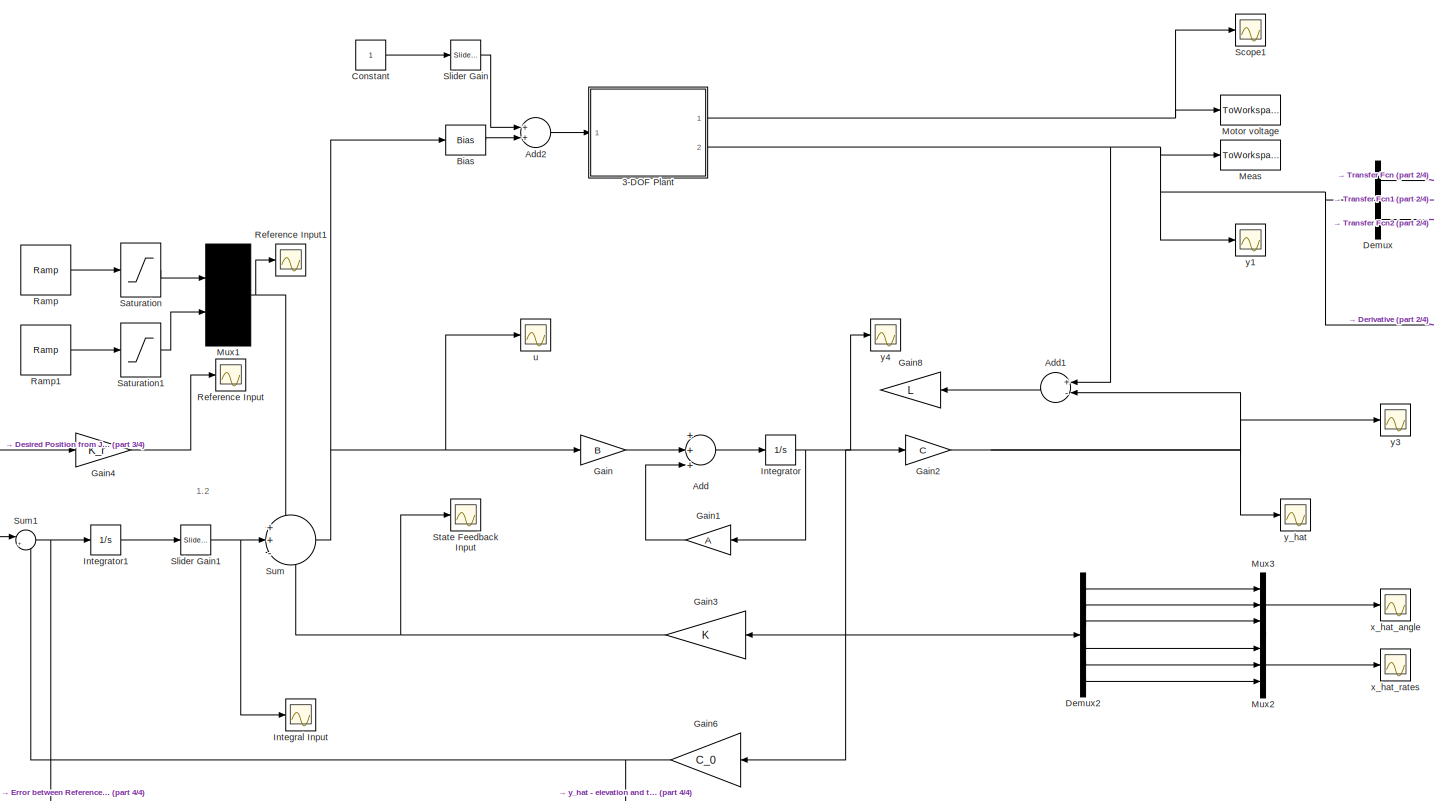
[diagram: root canvas - part 1/4, center side, full height]
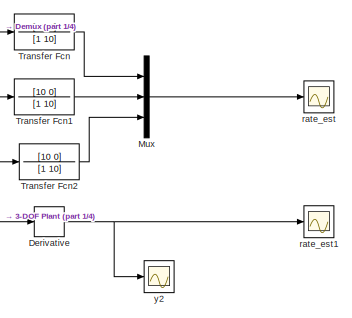
[diagram: root canvas - part 2/4, top right region]
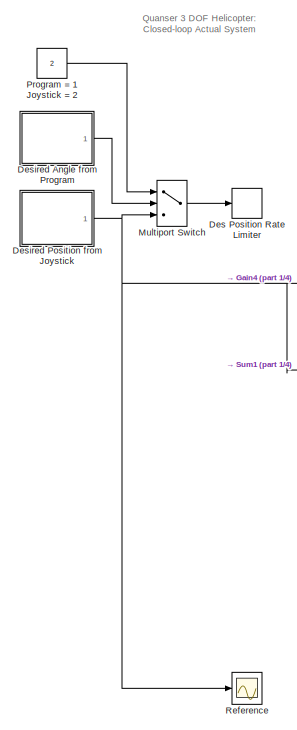
[diagram: root canvas - part 3/4, left side, full height]
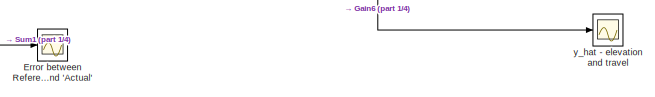
[diagram: root canvas - part 4/4, bottom center region]
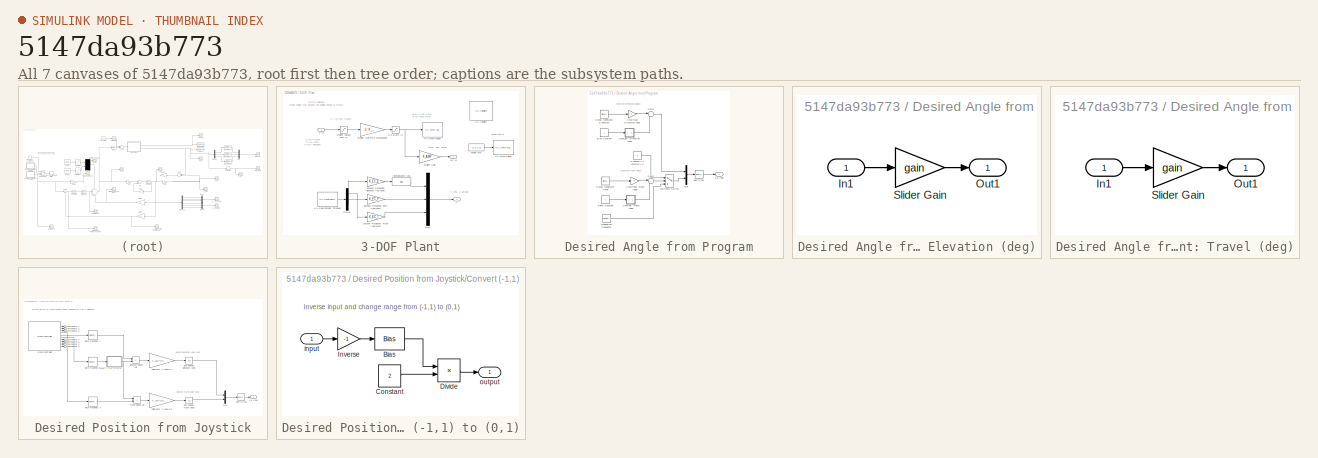
[diagram: thumbnail index - all 7 canvases of the model, root first then tree order]
MODEL slx_5147da93b773
KIND model
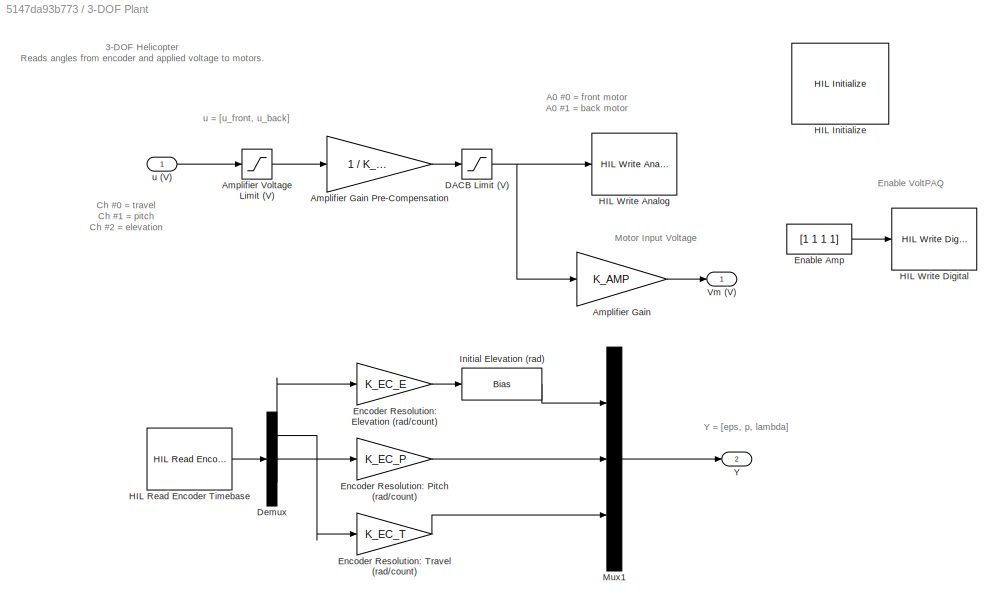
BLOCK [SubSystem] 3-DOF Plant
  FunctionWithSeparateData = off
  MaskHideContents = off
  MinAlgLoopOccurrences = off
  Opaque = off
  Ports = [1, 2]
  PropExecContextOutsideSubsystem = off
  RTWSystemCode = Auto
  RequestExecContextInheritance = off
BLOCK [Gain] 3-DOF Plant/Amplifier Gain
  Gain = K_AMP
  Multiplication = Matrix(K*u)
BLOCK [Gain] 3-DOF Plant/Amplifier Gain Pre-Compensation
  Gain = 1 / K_AMP
  Multiplication = Matrix(K*u)
BLOCK [Saturate] 3-DOF Plant/Amplifier Voltage Limit (V)
  InputPortMap = u0
  LowerLimit = -VMAX_AMP
  Ports = [1, 1]
  UpperLimit = VMAX_AMP
BLOCK [Saturate] 3-DOF Plant/DACB Limit (V)
  InputPortMap = u0
  LowerLimit = -VMAX_DAC
  Ports = [1, 1]
  UpperLimit = VMAX_DAC
BLOCK [Demux] 3-DOF Plant/Demux
  DisplayOption = bar
  Outputs = 3
  Ports = [1, 3]
BLOCK [Constant] 3-DOF Plant/Enable Amp
  Value = [1 1 1 1]
BLOCK [Gain] 3-DOF Plant/Encoder Resolution: Elevation (rad//count)
  Gain = K_EC_E
  OutDataTypeStr = Inherit: Inherit via internal rule
  ParamDataTypeStr = Inherit: Inherit via internal rule
  SaturateOnIntegerOverflow = off
BLOCK [Gain] 3-DOF Plant/Encoder Resolution: Pitch (rad//count)
  Gain = K_EC_P
  OutDataTypeStr = Inherit: Inherit via internal rule
  ParamDataTypeStr = Inherit: Inherit via internal rule
  SaturateOnIntegerOverflow = off
BLOCK [Gain] 3-DOF Plant/Encoder Resolution: Travel (rad//count)
  Gain = K_EC_T
  OutDataTypeStr = Inherit: Inherit via internal rule
  ParamDataTypeStr = Inherit: Inherit via internal rule
  SaturateOnIntegerOverflow = off
BLOCK [Reference] 3-DOF Plant/HIL Initialize  REF=quarc_library/Data Acquisition/Generic/Configuration/HIL Initialize
  AttributesFormatString = %<object_name> (%<board_type>-%<board_number>)
  Ports = []
  SourceBlock = quarc_library/Data Acquisition/Generic/Configuration/HIL Initialize
  SourceType = HIL Initialize
  UserDataPersistent = on
  active = on
  analog_input_channels = [0:7]
  analog_input_maximums = 10
  analog_input_minimums = -10
  analog_output_channels = [0:7]
  analog_output_maximums = 10
  analog_output_minimums = -10
  board_number = 0
  board_options = update_rate=normal
  board_type = q8_usb
  clock_modes = []
  digital_input_channels = [4:7]
  digital_output_channels = [0:3]
  digital_output_configuration = []
  encoder_channels = [0:7]
  encoder_filter_frequency = []
  exclusive = off
  final_analog_outputs = [0]
  final_digital_outputs = [0]
  final_other_outputs = []
  final_pwm_outputs = [0]
  hardware_clocks = [0:2]
  initial_analog_outputs = [0]
  initial_clock_frequencies = []
  initial_digital_outputs = [0]
  initial_encoder_counts = [0]
  initial_other_outputs = []
  initial_pwm_outputs = [0]
  object_name = HIL-1
  other_output_channels = []
  pwm_alignment = [0]
  pwm_channels = [0:7]
  pwm_configuration = [0]
  pwm_frequency = 99.532799999999995e6/4095
  pwm_leading_deadband = [0]
  pwm_modes = 0
  pwm_polarity = [1]
  pwm_trailing_deadband = [0]
  quadrature = [4]
  set_analog_input_params_at_start = on
  set_analog_input_params_at_switch_in = off
  set_analog_output_params_at_start = on
  set_analog_output_params_at_switch_in = off
  set_analog_outputs_at_start = on
  set_analog_outputs_at_switch_in = off
  set_analog_outputs_at_switch_out = off
  set_analog_outputs_at_terminate = on
  set_analog_outputs_on_watchdog = off
  set_clock_frequencies_at_start = off
  set_clock_frequencies_at_switch_in = off
  set_clock_params_at_start = off
  set_clock_params_at_switch_in = off
  set_digital_output_params_at_start = off
  set_digital_output_params_at_switch_in = off
  set_digital_outputs_at_start = on
  set_digital_outputs_at_switch_in = off
  set_digital_outputs_at_switch_out = off
  set_digital_outputs_at_terminate = on
  set_digital_outputs_on_watchdog = off
  set_encoder_counts_at_start = on
  set_encoder_counts_at_switch_in = off
  set_encoder_params_at_start = on
  set_encoder_params_at_switch_in = off
  set_other_outputs_at_start = off
  set_other_outputs_at_switch_in = off
  set_other_outputs_at_switch_out = off
  set_other_outputs_at_terminate = off
  set_other_outputs_on_watchdog = off
  set_pwm_outputs_at_start = on
  set_pwm_outputs_at_switch_in = off
  set_pwm_outputs_at_switch_out = off
  set_pwm_outputs_at_terminate = on
  set_pwm_outputs_on_watchdog = off
  set_pwm_params_at_start = on
  set_pwm_params_at_switch_in = off
  watchdog_analog_outputs = 0
  watchdog_digital_outputs = [0]
  watchdog_other_outputs = []
  watchdog_pwm_outputs = [0]
BLOCK [Reference] 3-DOF Plant/HIL Read Encoder Timebase  REF=quarc_library/Data Acquisition/Generic/Timebases/HIL Read Encoder
Timebase
  AttributesFormatString = (%<object_name>)
  Ports = [0, 1]
  SourceBlock = quarc_library/Data Acquisition/Generic/Timebases/HIL Read Encoder\nTimebase
  SourceType = HIL Read Encoder Timebase
  UserDataPersistent = on
  active = on
  channels = [0,1,2]
  clock = 0
  data_type = double
  data_type_mode = Inherit via back propagation
  object_name = HIL-1
  samples_in_buffer = max(ceil(1/qc_get_step_size), 1)
  vector_output = on
BLOCK [Reference] 3-DOF Plant/HIL Write Analog  REF=quarc_library/Data Acquisition/Generic/Immediate I//O/HIL Write Analog
  AttributesFormatString = (%<object_name>)
  Ports = [1]
  SourceBlock = quarc_library/Data Acquisition/Generic/Immediate I//O/HIL Write Analog
  SourceType = HIL Write Analog
  UserDataPersistent = on
  active = off
  channels = [0,1]
  object_name = HIL-1
  sample_time = -1
  vector_input = on
BLOCK [Reference] 3-DOF Plant/HIL Write Digital  REF=quarc_library/Data Acquisition/Generic/Immediate I//O/HIL Write Digital
  AttributesFormatString = (%<object_name>)
  Ports = [1]
  SourceBlock = quarc_library/Data Acquisition/Generic/Immediate I//O/HIL Write Digital
  SourceType = HIL Write Digital
  UserDataPersistent = on
  active = off
  channels = [0:3]
  object_name = HIL-1
  sample_time = -1
  vector_input = on
BLOCK [Bias] 3-DOF Plant/Initial Elevation (rad)
  Bias = elev_0
  SaturateOnIntegerOverflow = off
BLOCK [Mux] 3-DOF Plant/Mux1
  DisplayOption = bar
  Inputs = 3
  Ports = [3, 1]
BLOCK [Outport] 3-DOF Plant/Vm (V)
  IconDisplay = Port number
BLOCK [Outport] 3-DOF Plant/Y
  IconDisplay = Port number
  Port = 2
BLOCK [Inport] 3-DOF Plant/u (V)
  IconDisplay = Port number
BLOCK [Sum] Add
  InputSameDT = off
  Inputs = +++
  OutDataTypeStr = Inherit: Inherit via internal rule
  Ports = [3, 1]
  SaturateOnIntegerOverflow = off
BLOCK [Sum] Add1
  InputSameDT = off
  Inputs = +-
  OutDataTypeStr = Inherit: Inherit via internal rule
  Ports = [2, 1]
  SaturateOnIntegerOverflow = off
BLOCK [Sum] Add2
  InputSameDT = off
  OutDataTypeStr = Inherit: Inherit via internal rule
  Ports = [2, 1]
  SaturateOnIntegerOverflow = off
BLOCK [Bias] Bias
  Bias = Vo
  SaturateOnIntegerOverflow = off
BLOCK [Constant] Constant
BLOCK [Demux] Demux
  DisplayOption = bar
  Outputs = 3
  Ports = [1, 3]
BLOCK [Demux] Demux2
  DisplayOption = bar
  Outputs = 6
  Ports = [1, 6]
BLOCK [Derivative] Derivative
BLOCK [RateLimiter] Des Position Rate Limiter
  FallingSlewLimit = -CMD_RATE_LIMIT
  RisingSlewLimit = CMD_RATE_LIMIT
  SampleTimeMode = inherited
BLOCK [SubSystem] Desired Angle from Program
  FunctionWithSeparateData = off
  MaskHideContents = off
  MinAlgLoopOccurrences = off
  Opaque = off
  Ports = [0, 1]
  PropExecContextOutsideSubsystem = off
  RTWSystemCode = Auto
  RequestExecContextInheritance = off
BLOCK [Gain] Desired Angle from Program/Amplitude: Elevation (deg)
  Gain = 0
  OutDataTypeStr = Inherit: Inherit via internal rule
  ParamDataTypeStr = Inherit: Inherit via internal rule
  SaturateOnIntegerOverflow = off
BLOCK [Gain] Desired Angle from Program/Amplitude: Travel (deg)
  Gain = 0
  OutDataTypeStr = Inherit: Inherit via internal rule
  ParamDataTypeStr = Inherit: Inherit via internal rule
  SaturateOnIntegerOverflow = off
BLOCK [SubSystem] Desired Angle from Program/Constant: Elevation (deg)
  CloseFcn = slideg Close
  CopyFcn = slideg Copy
  DeleteFcn = slideg DeleteBlock
  FunctionWithSeparateData = off
  LoadFcn = slideg Load
  MaskCallbackString = ||
  MaskCapabilities = slmaskedcaps(gcbh)
  MaskDisplay = disp(gain)
  MaskEnableString = on,on,on
  MaskHideContents = off
  MaskIconFrame = on
  MaskIconOpaque = on
  MaskIconRotate = none
  MaskIconUnits = autoscale
  MaskPortRotate = default
  MaskPromptString = Low|Gain|High
  MaskStyleString = edit,edit,edit
  MaskToolTipString = on,on,on
  MaskTunableValueString = on,on,on
  MaskType = Slider Gain
  MaskValueString = -27.5|-27.5|30
  MaskVariables = low=@1;gain=@2;high=@3;
  MaskVisibilityString = on,on,on
  MinAlgLoopOccurrences = off
  NameChangeFcn = slideg NameChange
  Opaque = off
  OpenFcn = slideg Open
  ParentCloseFcn = slideg ParentClose
  Ports = [1, 1]
  PropExecContextOutsideSubsystem = off
  RTWSystemCode = Auto
  RequestExecContextInheritance = off
  StartFcn = slideg StartFcn
  StopFcn = slideg StopFcn
BLOCK [Inport] Desired Angle from Program/Constant: Elevation (deg)/In1
  IconDisplay = Port number
BLOCK [Outport] Desired Angle from Program/Constant: Elevation (deg)/Out1
  IconDisplay = Port number
BLOCK [Gain] Desired Angle from Program/Constant: Elevation (deg)/Slider Gain
  Gain = gain
BLOCK [SubSystem] Desired Angle from Program/Constant: Travel (deg)
  CloseFcn = slideg Close
  CopyFcn = slideg Copy
  DeleteFcn = slideg DeleteBlock
  FunctionWithSeparateData = off
  LoadFcn = slideg Load
  MaskCallbackString = ||
  MaskCapabilities = slmaskedcaps(gcbh)
  MaskDisplay = disp(gain)
  MaskEnableString = on,on,on
  MaskHideContents = off
  MaskIconFrame = on
  MaskIconOpaque = on
  MaskIconRotate = none
  MaskIconUnits = autoscale
  MaskPortRotate = default
  MaskPromptString = Low|Gain|High
  MaskStyleString = edit,edit,edit
  MaskToolTipString = on,on,on
  MaskTunableValueString = on,on,on
  MaskType = Slider Gain
  MaskValueString = -90|0|90
  MaskVariables = low=@1;gain=@2;high=@3;
  MaskVisibilityString = on,on,on
  MinAlgLoopOccurrences = off
  NameChangeFcn = slideg NameChange
  Opaque = off
  OpenFcn = slideg Open
  ParentCloseFcn = slideg ParentClose
  Ports = [1, 1]
  PropExecContextOutsideSubsystem = off
  RTWSystemCode = Auto
  RequestExecContextInheritance = off
  StartFcn = slideg StartFcn
  StopFcn = slideg StopFcn
BLOCK [Inport] Desired Angle from Program/Constant: Travel (deg)/In1
  IconDisplay = Port number
BLOCK [Outport] Desired Angle from Program/Constant: Travel (deg)/Out1
  IconDisplay = Port number
BLOCK [Gain] Desired Angle from Program/Constant: Travel (deg)/Slider Gain
  Gain = gain
BLOCK [Constant] Desired Angle from Program/Elev Constant
BLOCK [MultiPortSwitch] Desired Angle from Program/Multiport Switch
  InputSameDT = off
  Inputs = 2
  Ports = [3, 1]
  SaturateOnIntegerOverflow = off
  zeroidx = off
BLOCK [Mux] Desired Angle from Program/Mux
  DisplayOption = bar
  Inputs = 2
  Ports = [2, 1]
BLOCK [Constant] Desired Angle from Program/Program = 1 Joystick = 2
  Value = 2
BLOCK [Reference] Desired Angle from Program/Repeating Sequence  REF=simulink/Sources/Repeating
Sequence
  Ports = [0, 1]
  SourceBlock = simulink/Sources/Repeating\nSequence
  SourceType = Repeating table
  rep_seq_t = [0  15 16  30  45  46 60 ]
  rep_seq_y = [0 0 30 30  30 0 0 ]
BLOCK [SignalGenerator] Desired Angle from Program/Signal Generator: Elevation
  Frequency = 0.04
  Ports = [0, 1]
  WaveForm = square
BLOCK [SignalGenerator] Desired Angle from Program/Signal Generator: Travel
  Frequency = 0.03
  Ports = [0, 1]
  WaveForm = square
BLOCK [Sum] Desired Angle from Program/Sum1
  IconShape = round
  InputSameDT = off
  Inputs = |++
  OutDataTypeStr = Inherit: Inherit via internal rule
  Ports = [2, 1]
  SaturateOnIntegerOverflow = off
BLOCK [Sum] Desired Angle from Program/Sum2
  IconShape = round
  InputSameDT = off
  Inputs = |++
  OutDataTypeStr = Inherit: Inherit via internal rule
  Ports = [2, 1]
  SaturateOnIntegerOverflow = off
BLOCK [Constant] Desired Angle from Program/Travel Constant
BLOCK [Reference] Desired Angle from Program/deg to rad  REF=simulink_extras/Transformations/Degrees to
Radians
  Ports = [1, 1]
  SourceBlock = simulink_extras/Transformations/Degrees to\nRadians
  SourceType = DegreesToRadians
BLOCK [Outport] Desired Angle from Program/x_d (rad)
  IconDisplay = Port number
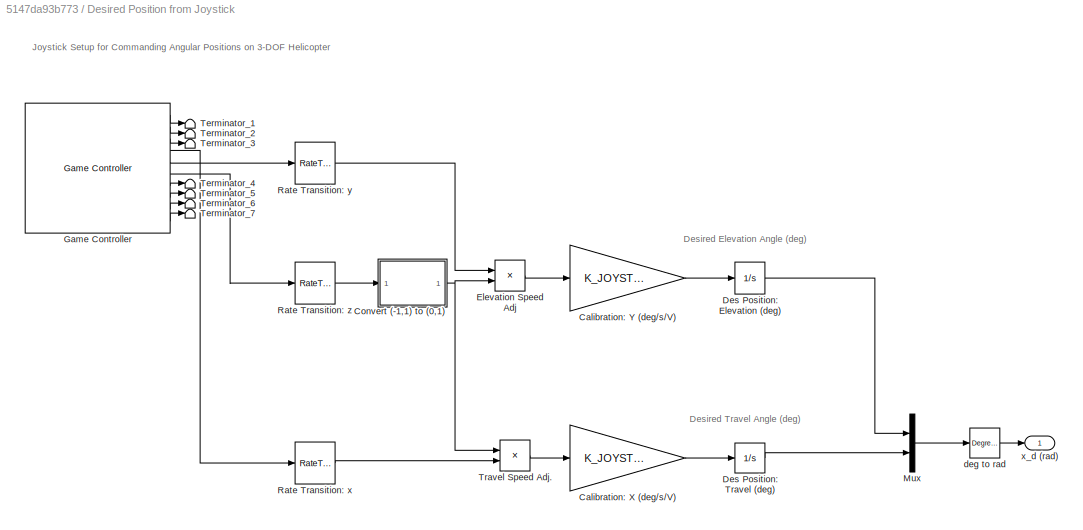
BLOCK [SubSystem] Desired Position from Joystick
  FunctionWithSeparateData = off
  MaskHideContents = off
  MinAlgLoopOccurrences = off
  Opaque = off
  Ports = [0, 1]
  PropExecContextOutsideSubsystem = off
  RTWSystemCode = Auto
  RequestExecContextInheritance = off
BLOCK [Gain] Desired Position from Joystick/Calibration: X (deg//s//V)
  Gain = K_JOYSTICK_X
  OutDataTypeStr = Inherit: Inherit via internal rule
  ParamDataTypeStr = Inherit: Inherit via internal rule
  SaturateOnIntegerOverflow = off
BLOCK [Gain] Desired Position from Joystick/Calibration: Y (deg//s//V)
  Gain = K_JOYSTICK_Y
  OutDataTypeStr = Inherit: Inherit via internal rule
  ParamDataTypeStr = Inherit: Inherit via internal rule
  SaturateOnIntegerOverflow = off
BLOCK [SubSystem] Desired Position from Joystick/Convert (-1,1) to (0,1)
  FunctionWithSeparateData = off
  MaskHideContents = off
  MinAlgLoopOccurrences = off
  Opaque = off
  Ports = [1, 1]
  PropExecContextOutsideSubsystem = off
  RTWSystemCode = Auto
  RequestExecContextInheritance = off
BLOCK [Bias] Desired Position from Joystick/Convert (-1,1) to (0,1)/Bias
  Bias = 1
  SaturateOnIntegerOverflow = off
BLOCK [Constant] Desired Position from Joystick/Convert (-1,1) to (0,1)/Constant
  Value = 2
BLOCK [Product] Desired Position from Joystick/Convert (-1,1) to (0,1)/Divide
  InputSameDT = off
  Inputs = */
  OutDataTypeStr = Inherit: Inherit via internal rule
  Ports = [2, 1]
  RndMeth = Floor
  SaturateOnIntegerOverflow = off
BLOCK [Gain] Desired Position from Joystick/Convert (-1,1) to (0,1)/Inverse
  Gain = -1
  OutDataTypeStr = Inherit: Inherit via internal rule
  ParamDataTypeStr = Inherit: Inherit via internal rule
  SaturateOnIntegerOverflow = off
BLOCK [Inport] Desired Position from Joystick/Convert (-1,1) to (0,1)/input
  IconDisplay = Port number
BLOCK [Outport] Desired Position from Joystick/Convert (-1,1) to (0,1)/output
  IconDisplay = Port number
BLOCK [Integrator] Desired Position from Joystick/Des Position: Elevation (deg)
  InitialCondition = elev_0*180/pi
  LimitOutput = on
  LowerSaturationLimit = CMD_ELEV_POS_LIMIT_LOWER
  Ports = [1, 1]
  UpperSaturationLimit = CMD_ELEV_POS_LIMIT_UPPER
BLOCK [Integrator] Desired Position from Joystick/Des Position: Travel (deg)
  LowerSaturationLimit = CMD_TRAVEL_POS_LIMIT_LOWER
  Ports = [1, 1]
  UpperSaturationLimit = CMD_TRAVEL_POS_LIMIT_UPPER
BLOCK [Product] Desired Position from Joystick/Elevation Speed Adj
  InputSameDT = off
  OutDataTypeStr = Inherit: Inherit via internal rule
  Ports = [2, 1]
  SaturateOnIntegerOverflow = off
BLOCK [Reference] Desired Position from Joystick/Game Controller  REF=quarc_library/Devices/Peripherals/Target/Game Controller
  Ports = [0, 10]
  SourceBlock = quarc_library/Devices/Peripherals/Target/Game Controller
  SourceType = Game Controller
  auto_center = off
  buffer_size = 12
  controller = 1
  deadzone = []
  enabled = on
  sample_time = max(qc_get_step_size, 0.01)
  saturation = []
BLOCK [Mux] Desired Position from Joystick/Mux
  DisplayOption = bar
  Inputs = 2
  Ports = [2, 1]
BLOCK [RateTransition] Desired Position from Joystick/Rate Transition: x
BLOCK [RateTransition] Desired Position from Joystick/Rate Transition: y
BLOCK [RateTransition] Desired Position from Joystick/Rate Transition: z
BLOCK [Terminator] Desired Position from Joystick/Terminator_1
BLOCK [Terminator] Desired Position from Joystick/Terminator_2
BLOCK [Terminator] Desired Position from Joystick/Terminator_3
BLOCK [Terminator] Desired Position from Joystick/Terminator_4
BLOCK [Terminator] Desired Position from Joystick/Terminator_5
BLOCK [Terminator] Desired Position from Joystick/Terminator_6
BLOCK [Terminator] Desired Position from Joystick/Terminator_7
BLOCK [Product] Desired Position from Joystick/Travel Speed Adj.
  InputSameDT = off
  OutDataTypeStr = Inherit: Inherit via internal rule
  Ports = [2, 1]
  SaturateOnIntegerOverflow = off
BLOCK [Reference] Desired Position from Joystick/deg to rad  REF=simulink_extras/Transformations/Degrees to
Radians
  Ports = [1, 1]
  SourceBlock = simulink_extras/Transformations/Degrees to\nRadians
  SourceType = DegreesToRadians
BLOCK [Outport] Desired Position from Joystick/x_d (rad)
  IconDisplay = Port number
BLOCK [Scope] Error between Reference and 'Actual'
  DataFormat = StructureWithTime
  Floating = off
  NumInputPorts = 1
  Ports = [1]
  SampleTime = 0
  SaveName = ScopeData12
  ShowLegends = off
  TimeRange = 10
  YMax = 5.5
  YMin = -2.5
  ZoomMode = yonly
BLOCK [Gain] Gain
  Gain = B
  Multiplication = Matrix(K*u)
  OutDataTypeStr = Inherit: Inherit via internal rule
  ParamDataTypeStr = Inherit: Inherit via internal rule
  SaturateOnIntegerOverflow = off
BLOCK [Gain] Gain1
  Gain = A
  Multiplication = Matrix(K*u)
  OutDataTypeStr = Inherit: Inherit via internal rule
  ParamDataTypeStr = Inherit: Inherit via internal rule
  SaturateOnIntegerOverflow = off
BLOCK [Gain] Gain2
  Gain = C
  Multiplication = Matrix(K*u)
  OutDataTypeStr = Inherit: Inherit via internal rule
  ParamDataTypeStr = Inherit: Inherit via internal rule
  SaturateOnIntegerOverflow = off
BLOCK [Gain] Gain3
  Gain = K
  Multiplication = Matrix(K*u)
  OutDataTypeStr = Inherit: Inherit via internal rule
  ParamDataTypeStr = Inherit: Inherit via internal rule
  SaturateOnIntegerOverflow = off
BLOCK [Gain] Gain4
  Gain = K_r
  Multiplication = Matrix(K*u)
  OutDataTypeStr = Inherit: Inherit via internal rule
  ParamDataTypeStr = Inherit: Inherit via internal rule
  SaturateOnIntegerOverflow = off
BLOCK [Gain] Gain6
  Gain = C_0
  Multiplication = Matrix(K*u)
  OutDataTypeStr = Inherit: Inherit via internal rule
  ParamDataTypeStr = Inherit: Inherit via internal rule
  SaturateOnIntegerOverflow = off
BLOCK [Gain] Gain8
  Gain = L
  Multiplication = Matrix(K*u)
  OutDataTypeStr = Inherit: Inherit via internal rule
  ParamDataTypeStr = Inherit: Inherit via internal rule
  SaturateOnIntegerOverflow = off
BLOCK [Scope] Integral Input
  DataFormat = StructureWithTime
  Floating = off
  NumInputPorts = 1
  Ports = [1]
  SampleTime = 0
  SaveName = ScopeData10
  ShowLegends = off
  TimeRange = 10
  YMax = 5.5
  YMin = -2.5
  ZoomMode = yonly
BLOCK [Integrator] Integrator
  Ports = [1, 1]
BLOCK [Integrator] Integrator1
  Ports = [1, 1]
BLOCK [ToWorkspace] Meas
  MaxDataPoints = inf
  Ports = [1]
  SampleTime = -1
  VariableName = x
BLOCK [ToWorkspace] Motor voltage
  MaxDataPoints = inf
  Ports = [1]
  SampleTime = -1
  VariableName = Vm
BLOCK [MultiPortSwitch] Multiport Switch
  InputSameDT = off
  Inputs = 2
  Ports = [3, 1]
  SaturateOnIntegerOverflow = off
  zeroidx = off
BLOCK [Mux] Mux
  DisplayOption = bar
  Inputs = 3
  Ports = [3, 1]
BLOCK [Mux] Mux1
  DisplayOption = bar
  Inputs = 2
  Ports = [2, 1]
BLOCK [Mux] Mux2
  DisplayOption = bar
  Inputs = 3
  Ports = [3, 1]
BLOCK [Mux] Mux3
  DisplayOption = bar
  Inputs = 3
  Ports = [3, 1]
BLOCK [Constant] Program = 1 Joystick = 2
  Value = 2
BLOCK [Reference] Ramp  REF=simulink/Sources/Ramp
  Ports = [0, 1]
  SourceBlock = simulink/Sources/Ramp
  SourceType = Ramp
  VectorParams1D = on
  X0 = 0
  slope = 12.5
  start = 40
BLOCK [Reference] Ramp1  REF=simulink/Sources/Ramp
  Ports = [0, 1]
  SourceBlock = simulink/Sources/Ramp
  SourceType = Ramp
  VectorParams1D = on
  X0 = 0
  slope = 12.5
  start = 40
BLOCK [Scope] Reference
  DataFormat = StructureWithTime
  Floating = off
  NumInputPorts = 1
  Ports = [1]
  SampleTime = 0
  SaveName = ScopeData2
  ShowLegends = off
  TimeRange = 10
  YMax = 2
  YMin = -0.5
  ZoomMode = yonly
BLOCK [Scope] Reference Input
  DataFormat = StructureWithTime
  Floating = off
  NumInputPorts = 1
  Ports = [1]
  SampleTime = 0
  SaveName = ScopeData11
  ShowLegends = off
  TimeRange = 10
  YMax = 60
  YMin = -60
BLOCK [Scope] Reference Input1
  DataFormat = StructureWithTime
  Floating = off
  NumInputPorts = 1
  Ports = [1]
  SampleTime = 0
  ShowLegends = off
  TimeRange = 10
  YMax = 60
  YMin = -60
BLOCK [Saturate] Saturation
  InputPortMap = u0
  Ports = [1, 1]
  UpperLimit = 40
BLOCK [Saturate] Saturation1
  InputPortMap = u0
  Ports = [1, 1]
  UpperLimit = 40
BLOCK [Scope] Scope1
  DataFormat = StructureWithTime
  Floating = off
  NumInputPorts = 1
  Ports = [1]
  SampleTime = 0
  SaveName = ScopeData1
  ShowLegends = off
  YMax = 0.25
  YMin = -0.5
BLOCK [Reference] Slider Gain  REF=simulink/Math
Operations/Slider
Gain
  Ports = [1, 1]
  SourceBlock = simulink/Math\nOperations/Slider\nGain
  SourceType = Slider Gain
  gain = 2.1505
  high = 3
  low = 0
BLOCK [Reference] Slider Gain1  REF=simulink/Math
Operations/Slider
Gain
  Ports = [1, 1]
  SourceBlock = simulink/Math\nOperations/Slider\nGain
  SourceType = Slider Gain
  gain = 0
  high = 20
  low = 0
BLOCK [Scope] State Feedback Input
  DataFormat = StructureWithTime
  Floating = off
  NumInputPorts = 1
  Ports = [1]
  SampleTime = 0
  SaveName = ScopeData9
  ShowLegends = off
  TimeRange = 10
  YMax = 4
  YMin = 0
  ZoomMode = yonly
BLOCK [Sum] Sum
  IconShape = round
  InputSameDT = off
  Inputs = ++-
  OutDataTypeStr = Inherit: Inherit via internal rule
  Ports = [3, 1]
  SaturateOnIntegerOverflow = off
BLOCK [Sum] Sum1
  IconShape = round
  InputSameDT = off
  Inputs = |+-
  OutDataTypeStr = Inherit: Inherit via internal rule
  Ports = [2, 1]
  SaturateOnIntegerOverflow = off
BLOCK [TransferFcn] Transfer Fcn
  Denominator = [1 10]
  Numerator = [10 0]
BLOCK [TransferFcn] Transfer Fcn1
  Denominator = [1 10]
  Numerator = [10 0]
BLOCK [TransferFcn] Transfer Fcn2
  Denominator = [1 10]
  Numerator = [10 0]
BLOCK [Scope] rate_est
  DataFormat = StructureWithTime
  Floating = off
  LimitDataPoints = off
  NumInputPorts = 1
  Ports = [1]
  SampleTime = 0
  SaveName = ScopeData3
  SaveToWorkspace = on
  ShowLegends = off
  YMax = 1.75
  YMin = -1.75
BLOCK [Scope] rate_est1
  DataFormat = StructureWithTime
  Floating = off
  LimitDataPoints = off
  NumInputPorts = 1
  Ports = [1]
  SampleTime = 0
  SaveName = ScopeData8
  SaveToWorkspace = on
  ShowLegends = off
  YMax = 0.8
  YMin = 0
BLOCK [Scope] u
  DataFormat = StructureWithTime
  Floating = off
  NumInputPorts = 1
  Ports = [1]
  SampleTime = 0
  SaveName = ScopeData13
  ShowLegends = off
  TimeRange = 10
  YMax = 4
  YMin = 0
  ZoomMode = yonly
BLOCK [Scope] x_hat_angle
  DataFormat = StructureWithTime
  Floating = off
  NumInputPorts = 1
  Ports = [1]
  SampleTime = 0
  SaveName = ScopeData7
  ShowLegends = off
  YMax = 0.025
  YMin = -0.475
BLOCK [Scope] x_hat_rates
  DataFormat = StructureWithTime
  Floating = off
  NumInputPorts = 1
  Ports = [1]
  SampleTime = 0
  SaveName = ScopeData6
  ShowLegends = off
  YMax = 1.25
  YMin = -1.5
BLOCK [Scope] y1
  DataFormat = StructureWithTime
  Floating = off
  LimitDataPoints = off
  MaxDataPoints = 10000
  NumInputPorts = 1
  Ports = [1]
  SampleTime = 0
  SaveName = y_plant
  SaveToWorkspace = on
  ShowLegends = off
  YMax = 0.2
  YMin = -0.5
BLOCK [Scope] y2
  DataFormat = StructureWithTime
  Floating = off
  MaxDataPoints = 10000
  NumInputPorts = 1
  Ports = [1]
  SampleTime = 0
  SaveName = y_plant1
  SaveToWorkspace = on
  ShowLegends = off
  YMax = 0.3
  YMin = 0.025
BLOCK [Scope] y3
  DataFormat = StructureWithTime
  Floating = off
  LimitDataPoints = off
  MaxDataPoints = 10000
  NumInputPorts = 1
  Ports = [1]
  SampleTime = 0
  SaveName = y_plant2
  SaveToWorkspace = on
  ShowLegends = off
  YMax = 0.2
  YMin = -0.5
BLOCK [Scope] y4
  DataFormat = StructureWithTime
  Floating = off
  LimitDataPoints = off
  MaxDataPoints = 10000
  NumInputPorts = 1
  Ports = [1]
  SampleTime = 0
  SaveName = y_plant3
  SaveToWorkspace = on
  ShowLegends = off
  YMax = 0.2
  YMin = -0.5
BLOCK [Scope] y_hat
  DataFormat = StructureWithTime
  Floating = off
  NumInputPorts = 1
  Ports = [1]
  SampleTime = 0
  SaveName = ScopeData4
  ShowLegends = off
  TimeRange = 10
  YMax = 2.25
  YMin = -0.75
BLOCK [Scope] y_hat - elevation and travel
  DataFormat = StructureWithTime
  Floating = off
  NumInputPorts = 1
  Ports = [1]
  SampleTime = 0
  SaveName = ScopeData5
  ShowLegends = off
  YMax = 0.2
  YMin = -0.7
ANNOTATION (root): 1.2
ANNOTATION (root): Quanser 3 DOF Helicopter: Closed-loop Actual System
ANNOTATION 3-DOF Plant: 3-DOF Helicopter Reads angles from encoder and applied voltage to motors.
ANNOTATION 3-DOF Plant: A0 #0 = front motor A0 #1 = back motor
ANNOTATION 3-DOF Plant: Ch #0 = travel Ch #1 = pitch Ch #2 = elevation
ANNOTATION 3-DOF Plant: Enable VoltPAQ
ANNOTATION 3-DOF Plant: Motor Input Voltage
ANNOTATION 3-DOF Plant: Y = [eps, p, lambda]
ANNOTATION 3-DOF Plant: u = [u_front, u_back]
ANNOTATION Desired Angle from Program: Desired elevation angle
ANNOTATION Desired Angle from Program: Desired travel angle
ANNOTATION Desired Position from Joystick: Desired Elevation Angle (deg)
ANNOTATION Desired Position from Joystick: Desired Travel Angle (deg)
ANNOTATION Desired Position from Joystick: Joystick Setup for Commanding Angular Positions on 3-DOF Helicopter
ANNOTATION Desired Position from Joystick/Convert (-1,1) to (0,1): Inverse input and change range from (-1,1) to (0,1)
LINE 3-DOF Plant/Amplifier Gain Pre-Compensation:1 -> 3-DOF Plant/DACB Limit (V):1
LINE 3-DOF Plant/Amplifier Gain:1 -> 3-DOF Plant/Vm (V):1
LINE 3-DOF Plant/Amplifier Voltage Limit (V):1 -> 3-DOF Plant/Amplifier Gain Pre-Compensation:1
NET 3-DOF Plant/DACB Limit (V):1 -> 3-DOF Plant/Amplifier Gain:1, 3-DOF Plant/HIL Write Analog:1
LINE 3-DOF Plant/Demux:1 -> 3-DOF Plant/Encoder Resolution: Travel (rad//count):1
LINE 3-DOF Plant/Demux:2 -> 3-DOF Plant/Encoder Resolution: Pitch (rad//count):1
LINE 3-DOF Plant/Demux:3 -> 3-DOF Plant/Encoder Resolution: Elevation (rad//count):1
LINE 3-DOF Plant/Enable Amp:1 -> 3-DOF Plant/HIL Write Digital:1
LINE 3-DOF Plant/Encoder Resolution: Elevation (rad//count):1 -> 3-DOF Plant/Initial Elevation (rad):1
LINE 3-DOF Plant/Encoder Resolution: Pitch (rad//count):1 -> 3-DOF Plant/Mux1:2
LINE 3-DOF Plant/Encoder Resolution: Travel (rad//count):1 -> 3-DOF Plant/Mux1:3
LINE 3-DOF Plant/HIL Read Encoder Timebase:1 -> 3-DOF Plant/Demux:1
LINE 3-DOF Plant/Initial Elevation (rad):1 -> 3-DOF Plant/Mux1:1
LINE 3-DOF Plant/Mux1:1 -> 3-DOF Plant/Y:1
LINE 3-DOF Plant/u (V):1 -> 3-DOF Plant/Amplifier Voltage Limit (V):1
NET 3-DOF Plant:1 -> Motor voltage:1, Scope1:1
NET 3-DOF Plant:2 -> Add1:1, Demux:1, Derivative:1, Meas:1, y1:1
LINE Add1:1 -> Gain8:1
LINE Add2:1 -> 3-DOF Plant:1
LINE Add:1 -> Integrator:1
LINE Bias:1 -> Add2:2
LINE Constant:1 -> Slider Gain:1
LINE Demux2:1 -> Mux3:1
LINE Demux2:2 -> Mux3:2
LINE Demux2:3 -> Mux3:3
LINE Demux2:4 -> Mux2:1
LINE Demux2:5 -> Mux2:2
LINE Demux2:6 -> Mux2:3
LINE Demux:1 -> Transfer Fcn:1
LINE Demux:2 -> Transfer Fcn1:1
LINE Demux:3 -> Transfer Fcn2:1
NET Derivative:1 -> rate_est1:1, y2:1
LINE Desired Angle from Program/Amplitude: Elevation (deg):1 -> Desired Angle from Program/Sum1:1
LINE Desired Angle from Program/Amplitude: Travel (deg):1 -> Desired Angle from Program/Sum2:1
LINE Desired Angle from Program/Constant: Elevation (deg)/In1:1 -> Desired Angle from Program/Constant: Elevation (deg)/Slider Gain:1
LINE Desired Angle from Program/Constant: Elevation (deg)/Slider Gain:1 -> Desired Angle from Program/Constant: Elevation (deg)/Out1:1
LINE Desired Angle from Program/Constant: Elevation (deg):1 -> Desired Angle from Program/Sum1:2
LINE Desired Angle from Program/Constant: Travel (deg)/In1:1 -> Desired Angle from Program/Constant: Travel (deg)/Slider Gain:1
LINE Desired Angle from Program/Constant: Travel (deg)/Slider Gain:1 -> Desired Angle from Program/Constant: Travel (deg)/Out1:1
LINE Desired Angle from Program/Constant: Travel (deg):1 -> Desired Angle from Program/Sum2:2
LINE Desired Angle from Program/Elev Constant:1 -> Desired Angle from Program/Constant: Elevation (deg):1
LINE Desired Angle from Program/Multiport Switch:1 -> Desired Angle from Program/Mux:2
LINE Desired Angle from Program/Mux:1 -> Desired Angle from Program/deg to rad:1
LINE Desired Angle from Program/Program = 1 Joystick = 2:1 -> Desired Angle from Program/Multiport Switch:1
LINE Desired Angle from Program/Repeating Sequence:1 -> Desired Angle from Program/Multiport Switch:3
LINE Desired Angle from Program/Signal Generator: Elevation:1 -> Desired Angle from Program/Amplitude: Elevation (deg):1
LINE Desired Angle from Program/Signal Generator: Travel:1 -> Desired Angle from Program/Amplitude: Travel (deg):1
LINE Desired Angle from Program/Sum1:1 -> Desired Angle from Program/Mux:1
LINE Desired Angle from Program/Sum2:1 -> Desired Angle from Program/Multiport Switch:2
LINE Desired Angle from Program/Travel Constant:1 -> Desired Angle from Program/Constant: Travel (deg):1
LINE Desired Angle from Program/deg to rad:1 -> Desired Angle from Program/x_d (rad):1
LINE Desired Angle from Program:1 -> Multiport Switch:2
LINE Desired Position from Joystick/Calibration: X (deg//s//V):1 -> Desired Position from Joystick/Des Position: Travel (deg):1
LINE Desired Position from Joystick/Calibration: Y (deg//s//V):1 -> Desired Position from Joystick/Des Position: Elevation (deg):1
LINE Desired Position from Joystick/Convert (-1,1) to (0,1)/Bias:1 -> Desired Position from Joystick/Convert (-1,1) to (0,1)/Divide:1
LINE Desired Position from Joystick/Convert (-1,1) to (0,1)/Constant:1 -> Desired Position from Joystick/Convert (-1,1) to (0,1)/Divide:2
LINE Desired Position from Joystick/Convert (-1,1) to (0,1)/Divide:1 -> Desired Position from Joystick/Convert (-1,1) to (0,1)/output:1
LINE Desired Position from Joystick/Convert (-1,1) to (0,1)/Inverse:1 -> Desired Position from Joystick/Convert (-1,1) to (0,1)/Bias:1
LINE Desired Position from Joystick/Convert (-1,1) to (0,1)/input:1 -> Desired Position from Joystick/Convert (-1,1) to (0,1)/Inverse:1
NET Desired Position from Joystick/Convert (-1,1) to (0,1):1 -> Desired Position from Joystick/Elevation Speed Adj:2, Desired Position from Joystick/Travel Speed Adj.:1
LINE Desired Position from Joystick/Des Position: Elevation (deg):1 -> Desired Position from Joystick/Mux:1
LINE Desired Position from Joystick/Des Position: Travel (deg):1 -> Desired Position from Joystick/Mux:2
LINE Desired Position from Joystick/Elevation Speed Adj:1 -> Desired Position from Joystick/Calibration: Y (deg//s//V):1
LINE Desired Position from Joystick/Game Controller:1 -> Desired Position from Joystick/Terminator_1:1
LINE Desired Position from Joystick/Game Controller:10 -> Desired Position from Joystick/Terminator_7:1
LINE Desired Position from Joystick/Game Controller:2 -> Desired Position from Joystick/Terminator_2:1
LINE Desired Position from Joystick/Game Controller:3 -> Desired Position from Joystick/Terminator_3:1
LINE Desired Position from Joystick/Game Controller:4 -> Desired Position from Joystick/Rate Transition: x:1
LINE Desired Position from Joystick/Game Controller:5 -> Desired Position from Joystick/Rate Transition: y:1
LINE Desired Position from Joystick/Game Controller:6 -> Desired Position from Joystick/Rate Transition: z:1
LINE Desired Position from Joystick/Game Controller:7 -> Desired Position from Joystick/Terminator_4:1
LINE Desired Position from Joystick/Game Controller:8 -> Desired Position from Joystick/Terminator_5:1
LINE Desired Position from Joystick/Game Controller:9 -> Desired Position from Joystick/Terminator_6:1
LINE Desired Position from Joystick/Mux:1 -> Desired Position from Joystick/deg to rad:1
LINE Desired Position from Joystick/Rate Transition: x:1 -> Desired Position from Joystick/Travel Speed Adj.:2
LINE Desired Position from Joystick/Rate Transition: y:1 -> Desired Position from Joystick/Elevation Speed Adj:1
LINE Desired Position from Joystick/Rate Transition: z:1 -> Desired Position from Joystick/Convert (-1,1) to (0,1):1
LINE Desired Position from Joystick/Travel Speed Adj.:1 -> Desired Position from Joystick/Calibration: X (deg//s//V):1
LINE Desired Position from Joystick/deg to rad:1 -> Desired Position from Joystick/x_d (rad):1
NET Desired Position from Joystick:1 -> Gain4:1, Multiport Switch:3, Reference:1, Sum1:1
LINE Gain1:1 -> Add:3
NET Gain2:1 -> Add1:2, y3:1, y_hat:1
NET Gain3:1 -> State Feedback Input:1, Sum:3
LINE Gain4:1 -> Reference Input:1
NET Gain6:1 -> Sum1:2, y_hat - elevation and travel:1
LINE Gain:1 -> Add:2
LINE Integrator1:1 -> Slider Gain1:1
NET Integrator:1 -> Demux2:1, Gain1:1, Gain2:1, Gain3:1, Gain6:1, y4:1
LINE Multiport Switch:1 -> Des Position Rate Limiter:1
NET Mux1:1 -> Reference Input1:1, Sum:1
LINE Mux2:1 -> x_hat_rates:1
LINE Mux3:1 -> x_hat_angle:1
LINE Mux:1 -> rate_est:1
LINE Program = 1 Joystick = 2:1 -> Multiport Switch:1
LINE Ramp1:1 -> Saturation1:1
LINE Ramp:1 -> Saturation:1
LINE Saturation1:1 -> Mux1:2
LINE Saturation:1 -> Mux1:1
NET Slider Gain1:1 -> Integral Input:1, Sum:2
LINE Slider Gain:1 -> Add2:1
NET Sum1:1 -> Error between Reference and 'Actual':1, Integrator1:1
NET Sum:1 -> Bias:1, Gain:1, u:1
LINE Transfer Fcn1:1 -> Mux:2
LINE Transfer Fcn2:1 -> Mux:3
LINE Transfer Fcn:1 -> Mux:1
note: NET lines group one-source signal fan-out (src -> all destinations, sorted); 1:1 wires keep LINE
